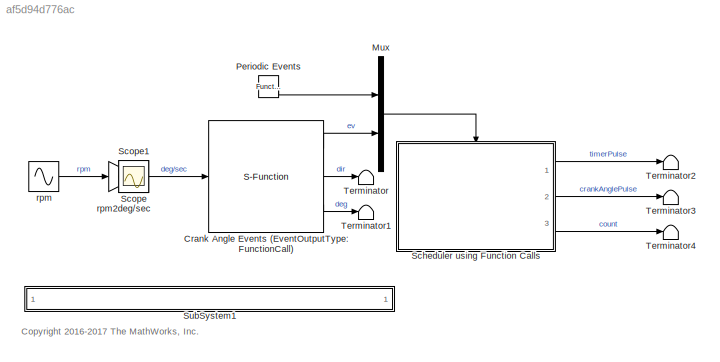
MODEL slx_af5d94d776ac
KIND model
CONFIG AbsTol = auto
CONFIG EnableMultiTasking = on
CONFIG FixedStep = auto
CONFIG MaxStep = inf
CONFIG MinStep = auto
CONFIG RelTol = 1e-6
CONFIG SampleTimeConstraint = Unconstrained
CONFIG Solver = VariableStepAuto
CONFIG SolverName = VariableStepAuto
CONFIG StartTime = 0.0
CONFIG StopFcn = %dt = [diff(tout); nan];\n%plot(tout, dt, '.'); grid;\n%title('Step size is driven by crank angle events');\n%ylabel('Step size');\n%xlabel('Time');\n
CONFIG StopTime = 20
BLOCK [S-Function] Crank Angle Events (EventOutputType: FunctionCall)
  EnableBusSupport = off
  FunctionName = sfun_angle_events
  LoadFcn = DVG.Registry.registerIcon(...\n'BlockIcon.SFunAngleEvents', ...\nfullfile(matlabroot,'toolbox','simulink','simdemos','simfeatures','slexToothedWheel.svg'))
  Parameters = CrossingAngles, InitialAngle, eventOutputType, clockwiseOnly
  Ports = [1, 3]
  SFcnIsStateOwnerBlock = off
  SFunctionDeploymentMode = off
BLOCK [Mux] Mux
  DisplayOption = bar
  Inputs = 2
  Ports = [2, 1]
BLOCK [Reference] Periodic Events  REF=simulink/Ports &
Subsystems/Function-Call
Generator
  AttributesFormatString = [Period=%<sample_time>]
  Ports = [0, 1]
  SourceBlock = simulink/Ports &\nSubsystems/Function-Call\nGenerator
  SourceProductBaseCode = SL
  SourceProductName = Simulink
  SourceType = Function-Call Generator
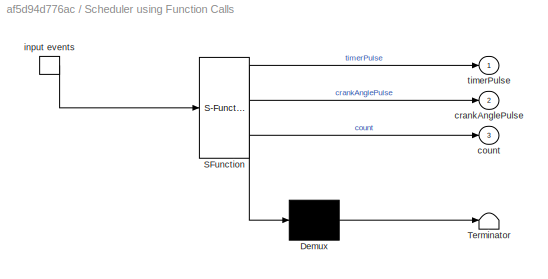
BLOCK [SubSystem] Scheduler using Function Calls
  ErrorFcn = Stateflow.Translate.translate
  PermitHierarchicalResolution = ExplicitOnly
  Ports = [0, 3, 0, 1]
  RequestExecContextInheritance = off
  SFBlockType = Chart
  TreatAsAtomicUnit = on
  Variant = off
BLOCK [Demux] Scheduler using Function Calls/ Demux 
  Outputs = 1
  Ports = [1, 1]
BLOCK [S-Function] Scheduler using Function Calls/ SFunction 
  EnableBusSupport = on
  FunctionName = sf_sfun
  PortCounts = [1 4]
  Ports = [1, 4]
  SFcnIsStateOwnerBlock = off
  SFunctionDeploymentMode = off
  Tag = Stateflow S-Function sf_angle_events 3
BLOCK [Terminator] Scheduler using Function Calls/ Terminator 
BLOCK [Outport] Scheduler using Function Calls/count
  IconDisplay = Port number
  Port = 3
BLOCK [Outport] Scheduler using Function Calls/crankAnglePulse
  IconDisplay = Port number
  Port = 2
BLOCK [TriggerPort] Scheduler using Function Calls/input events
  Ports = [0, 1]
  ShowOutputPort = on
  StatesWhenEnabling = held
  TriggerType = function-call
  VariantControl = Variant
BLOCK [Outport] Scheduler using Function Calls/timerPulse
  IconDisplay = Port number
BLOCK [Scope] Scope
  IOType = viewer
  NumInputPorts = 1
  Ports = []
  ScopeSpecificationString = Simulink.scopes.TimeScopeBlockCfg('CurrentConfiguration', extmgr.ConfigurationSet(extmgr.Configuration('Core','General UI',true),extmgr.Configuration('Core','Source UI',true),extmgr.Configuration('Sources','WiredSimulink',true),extmgr.Configuration('Visuals','Time Domain',true,'SerializedDisplays',{struct('MinYLimReal','-75.00000','MaxYLimReal','6675.00000','YLabelReal','','MinYLimMag','0.00000','...<+2041ch>
BLOCK [Scope] Scope1
  IOType = viewer
  NumInputPorts = 1
  Ports = []
  ScopeSpecificationString = Simulink.scopes.TimeScopeBlockCfg('CurrentConfiguration', extmgr.ConfigurationSet(extmgr.Configuration('Core','General UI',true),extmgr.Configuration('Core','Source UI',true),extmgr.Configuration('Sources','WiredSimulink',true,'DataLoggingVariableName','ScopeData1'),extmgr.Configuration('Visuals','Time Domain',true,'SerializedDisplays',{struct('MinYLimReal','-0.125','MaxYLimReal','1.125','YLabelRe...<+2052ch>
BLOCK [SubSystem] SubSystem1
  AttributesFormatString = \n
  OpenFcn = sfundemo_openfcn
  Ports = []
  RequestExecContextInheritance = off
  Variant = off
BLOCK [Terminator] Terminator
BLOCK [Terminator] Terminator1
BLOCK [Terminator] Terminator2
BLOCK [Terminator] Terminator3
BLOCK [Terminator] Terminator4
BLOCK [Sin] rpm
  Amplitude = 2700
  Bias = 3300
  Frequency = pi/5
  Ports = [0, 1]
  SampleTime = 0
BLOCK [Gain] rpm2deg//sec
  Gain = 6
  OutDataTypeStr = Inherit: Inherit via internal rule
  ParamDataTypeStr = Inherit: Inherit via internal rule
  SaturateOnIntegerOverflow = off
ANNOTATION (root): <copyright redacted>
LINE Crank Angle Events (EventOutputType: FunctionCall):1 -> Mux:2
LINE Crank Angle Events (EventOutputType: FunctionCall):2 -> Terminator:1
LINE Crank Angle Events (EventOutputType: FunctionCall):3 -> Terminator1:1
LINE Mux:1 -> Scheduler using Function Calls:trigger
LINE Periodic Events:1 -> Mux:1
LINE Scheduler using Function Calls:1 -> Terminator2:1
LINE Scheduler using Function Calls:2 -> Terminator3:1
LINE Scheduler using Function Calls:3 -> Terminator4:1
LINE rpm2deg//sec:1 -> Crank Angle Events (EventOutputType: FunctionCall):1
LINE rpm:1 -> rpm2deg//sec:1
CHART Scheduler
using
Function Calls states=1 transitions=6
  STATE_LABEL 'DefaultState'
